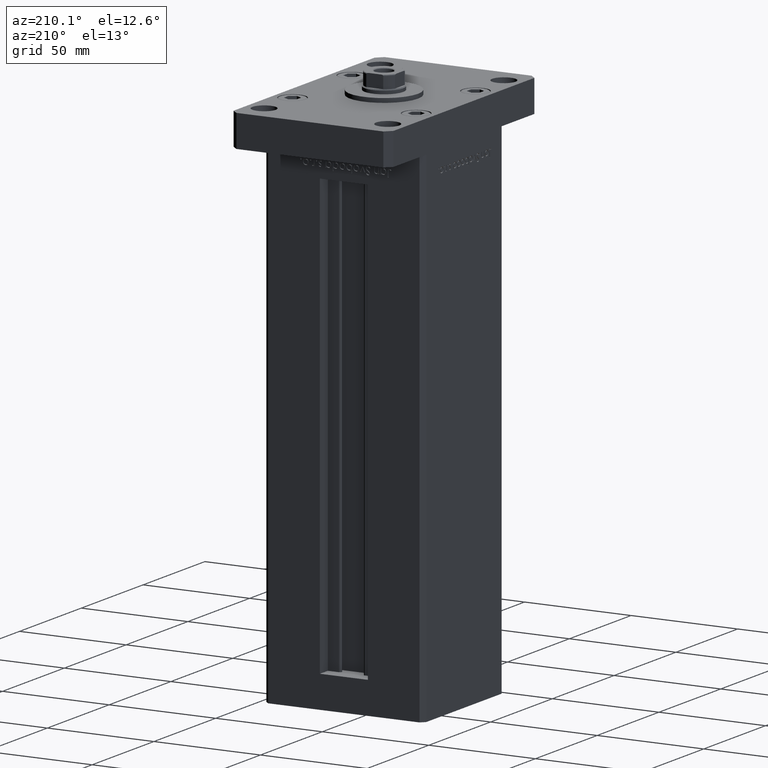
[diagram: clean part render]
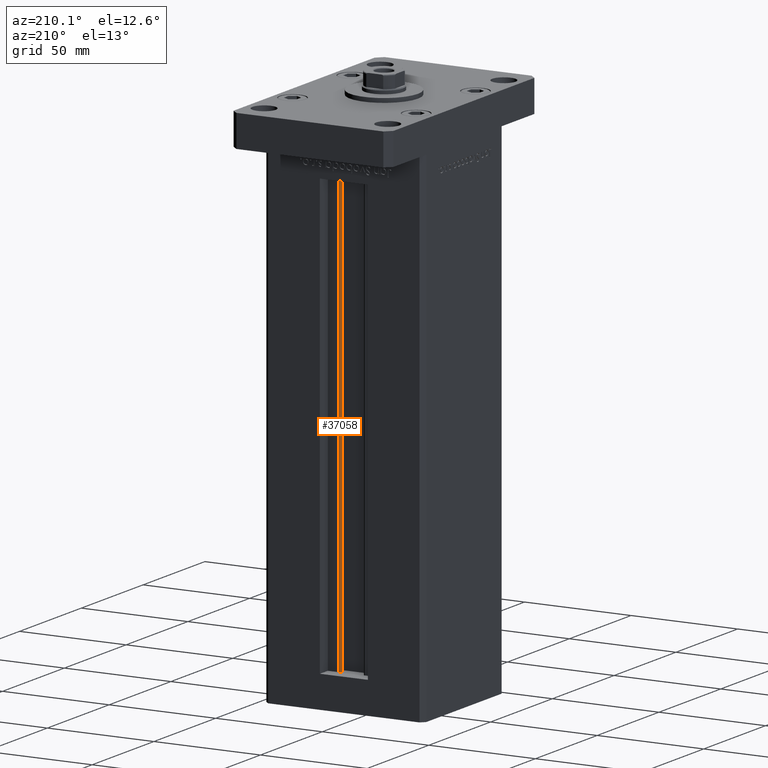
[diagram: same view with one face highlighted and labeled with its STEP entity id]
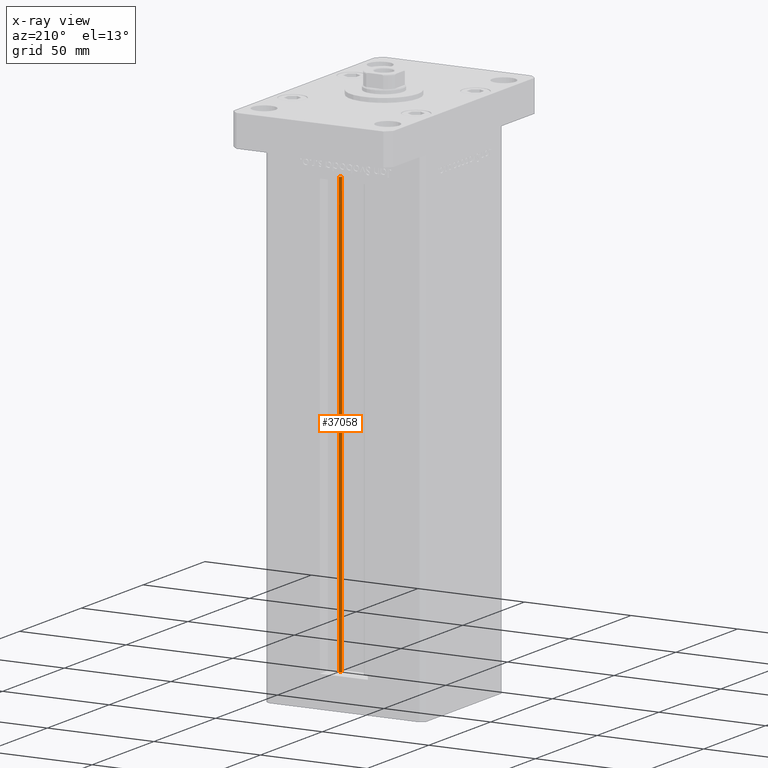
[diagram: x-ray of the same camera — body ghosted, the highlighted face saturated]
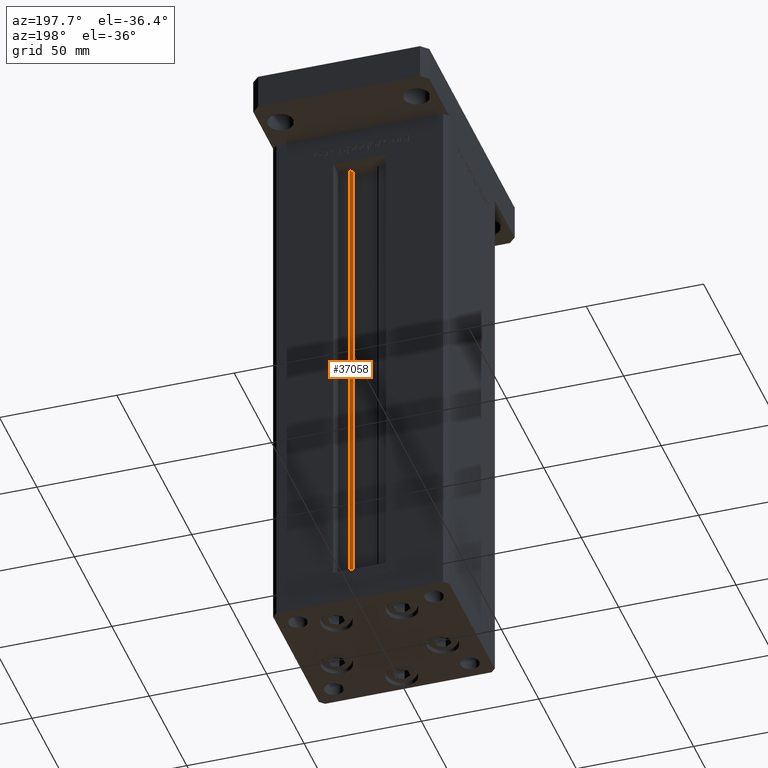
[diagram: same view with one face highlighted and labeled with its STEP entity id]
A machine part, auxiliary view. The second image highlights one B-rep face of the part: STEP entity #37058.
The next image is the same camera in x-ray: the body ghosted, the highlighted face saturated — about 0% of this face is hidden behind the body in this view.
A second angle (auxiliary view) of the same face is appended — the face is thin or edge-on in the first view.
In plain terms, the highlighted cylindrical surface (edge-blend (fillet) strip) has radius 0.9333 mm, axis along (0, 0, 1).
Its self-contained STEP definition (entity closure, byte-faithful):
#2692 = DIRECTION ( 'NONE',  ( 1.000000000000000000, 0.000000000000000000, 0.000000000000000000 ) ) ;
#4777 = EDGE_CURVE ( 'NONE', #15942, #13494, #50214, .T. ) ;
#5322 = CARTESIAN_POINT ( 'NONE',  ( 5.375042956467947164, 24.59999999999899245, 0.000000000000000000 ) ) ;
#7669 = DIRECTION ( 'NONE',  ( -0.000000000000000000, -0.000000000000000000, 1.000000000000000000 ) ) ;
#8007 = LINE ( 'NONE', #16130, #20879 ) ;
#10671 = VECTOR ( 'NONE', #15630, 1000.000000000000000 ) ;
#11234 = DIRECTION ( 'NONE',  ( -0.000000000000000000, -0.000000000000000000, -1.000000000000000000 ) ) ;
#11624 = ORIENTED_EDGE ( 'NONE', *, *, #13441, .F. ) ;
#12069 = DIRECTION ( 'NONE',  ( -0.000000000000000000, -0.000000000000000000, 1.000000000000000000 ) ) ;
#12956 = AXIS2_PLACEMENT_3D ( 'NONE', #27238, #11234, #26972 ) ;
#13441 = EDGE_CURVE ( 'NONE', #13494, #41953, #8007, .T. ) ;
#13494 = VERTEX_POINT ( 'NONE', #28879 ) ;
#15409 = AXIS2_PLACEMENT_3D ( 'NONE', #44818, #7669, #28283 ) ;
#15630 = DIRECTION ( 'NONE',  ( -0.000000000000000000, -0.000000000000000000, 1.000000000000000000 ) ) ;
#15942 = VERTEX_POINT ( 'NONE', #5322 ) ;
#16130 = CARTESIAN_POINT ( 'NONE',  ( 6.183333333334001480, 25.99999999999999289, 0.000000000000000000 ) ) ;
#19002 = EDGE_CURVE ( 'NONE', #15942, #22349, #52002, .T. ) ;
#20683 = CARTESIAN_POINT ( 'NONE',  ( 6.183333333334001480, 25.99999999999999289, 206.0000000000000000 ) ) ;
#20879 = VECTOR ( 'NONE', #12069, 1000.000000000000000 ) ;
#22349 = VERTEX_POINT ( 'NONE', #49212 ) ;
#26162 = EDGE_LOOP ( 'NONE', ( #11624, #30798, #26607, #41112 ) ) ;
#26607 = ORIENTED_EDGE ( 'NONE', *, *, #19002, .T. ) ;
#26972 = DIRECTION ( 'NONE',  ( 1.000000000000000000, 0.000000000000000000, 0.000000000000000000 ) ) ;
#27238 = CARTESIAN_POINT ( 'NONE',  ( 6.183333333334001480, 25.06666666666599141, 0.000000000000000000 ) ) ;
#27352 = DIRECTION ( 'NONE',  ( 0.000000000000000000, 0.000000000000000000, -1.000000000000000000 ) ) ;
#28283 = DIRECTION ( 'NONE',  ( 1.000000000000000000, 0.000000000000000000, 0.000000000000000000 ) ) ;
#28879 = CARTESIAN_POINT ( 'NONE',  ( 6.183333333334001480, 25.99999999999999289, 0.000000000000000000 ) ) ;
#29274 = CIRCLE ( 'NONE', #31871, 0.9333333333340008142 ) ;
#30798 = ORIENTED_EDGE ( 'NONE', *, *, #4777, .F. ) ;
#31871 = AXIS2_PLACEMENT_3D ( 'NONE', #53108, #27352, #2692 ) ;
#37058 = ADVANCED_FACE ( 'NONE', ( #48642 ), #52976, .T. ) ;
#41112 = ORIENTED_EDGE ( 'NONE', *, *, #46672, .T. ) ;
#41953 = VERTEX_POINT ( 'NONE', #20683 ) ;
#44818 = CARTESIAN_POINT ( 'NONE',  ( 6.183333333334001480, 25.06666666666599141, 0.000000000000000000 ) ) ;
#46672 = EDGE_CURVE ( 'NONE', #22349, #41953, #29274, .T. ) ;
#48205 = CARTESIAN_POINT ( 'NONE',  ( 5.375042956467947164, 24.59999999999899245, 0.000000000000000000 ) ) ;
#48642 = FACE_OUTER_BOUND ( 'NONE', #26162, .T. ) ;
#49212 = CARTESIAN_POINT ( 'NONE',  ( 5.375042956467948052, 24.59999999999899245, 206.0000000000000000 ) ) ;
#50214 = CIRCLE ( 'NONE', #12956, 0.9333333333340008142 ) ;
#52002 = LINE ( 'NONE', #48205, #10671 ) ;
#52976 = CYLINDRICAL_SURFACE ( 'NONE', #15409, 0.9333333333340008142 ) ;
#53108 = CARTESIAN_POINT ( 'NONE',  ( 6.183333333334001480, 25.06666666666599141, 206.0000000000000000 ) ) ;